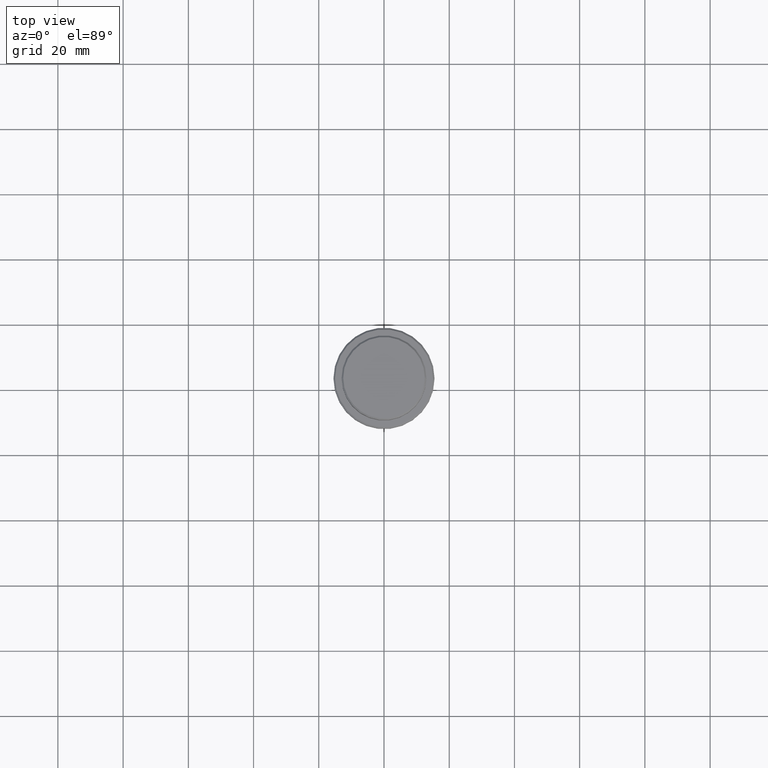
[diagram: clean part render]
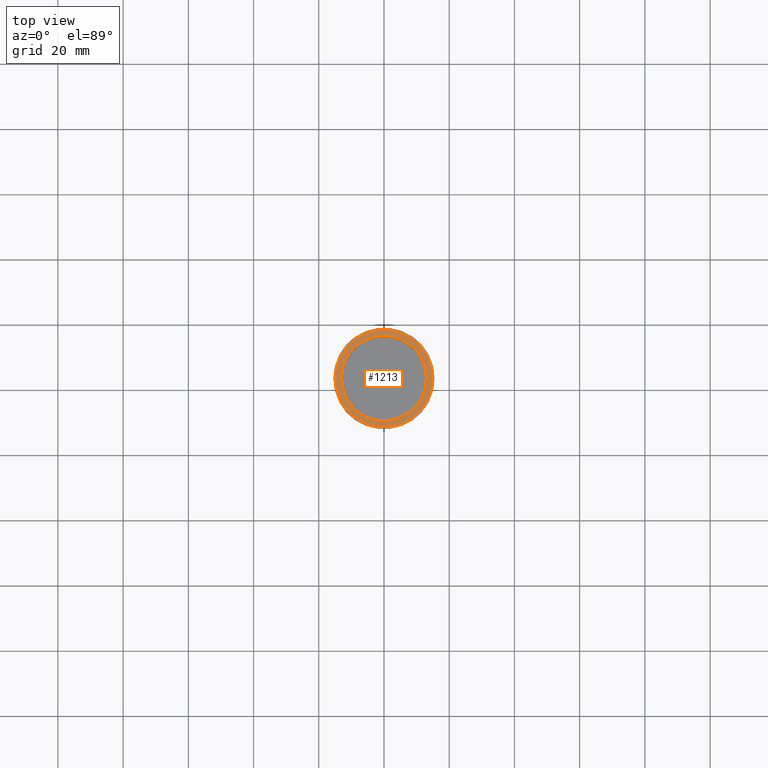
[diagram: same view with one face highlighted and labeled with its STEP entity id]
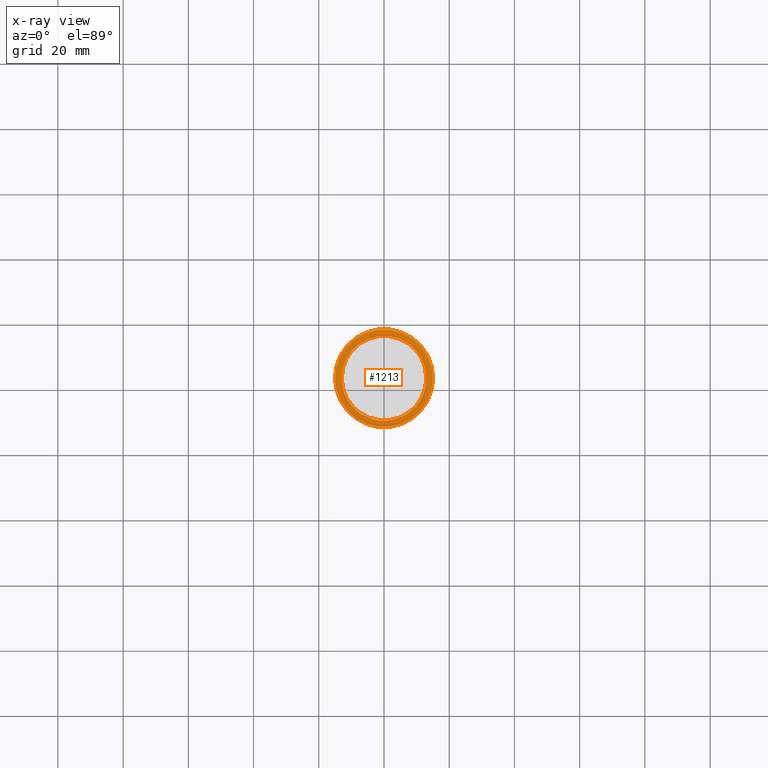
[diagram: x-ray of the same camera — body ghosted, the highlighted face saturated]
A machine part, top view. The second image highlights one B-rep face of the part: STEP entity #1213.
The next image is the same camera in x-ray: the body ghosted, the highlighted face saturated — about 0% of this face is hidden behind the body in this view.
In plain terms, the highlighted planar face has unit normal (0, -0, 1).
Its self-contained STEP definition (entity closure, byte-faithful):
#35 = EDGE_LOOP ( 'NONE', ( #41, #248 ) ) ;
#41 = ORIENTED_EDGE ( 'NONE', *, *, #1172, .T. ) ;
#59 = DIRECTION ( 'NONE',  ( 1.000000000000000000, 0.000000000000000000, 0.000000000000000000 ) ) ;
#99 = CIRCLE ( 'NONE', #893, 12.99999999999999467 ) ;
#115 = DIRECTION ( 'NONE',  ( -0.000000000000000000, -0.000000000000000000, 1.000000000000000000 ) ) ;
#162 = FACE_BOUND ( 'NONE', #882, .T. ) ;
#197 = EDGE_CURVE ( 'NONE', #490, #596, #99, .T. ) ;
#204 = DIRECTION ( 'NONE',  ( 1.000000000000000000, 0.000000000000000000, 0.000000000000000000 ) ) ;
#208 = DIRECTION ( 'NONE',  ( 1.000000000000000000, 0.000000000000000000, 0.000000000000000000 ) ) ;
#248 = ORIENTED_EDGE ( 'NONE', *, *, #786, .T. ) ;
#251 = CIRCLE ( 'NONE', #531, 14.99999999999998579 ) ;
#265 = FACE_OUTER_BOUND ( 'NONE', #35, .T. ) ;
#490 = VERTEX_POINT ( 'NONE', #840 ) ;
#531 = AXIS2_PLACEMENT_3D ( 'NONE', #1307, #115, #208 ) ;
#581 = AXIS2_PLACEMENT_3D ( 'NONE', #1312, #1195, #681 ) ;
#590 = CARTESIAN_POINT ( 'NONE',  ( 0.000000000000000000, 12.49999999999999289, -9.000000000000001776 ) ) ;
#596 = VERTEX_POINT ( 'NONE', #1294 ) ;
#615 = PLANE ( 'NONE',  #1007 ) ;
#621 = CARTESIAN_POINT ( 'NONE',  ( -14.99999999999998579, 0.000000000000000000, -9.000000000000001776 ) ) ;
#664 = CARTESIAN_POINT ( 'NONE',  ( 0.000000000000000000, 0.000000000000000000, -9.000000000000001776 ) ) ;
#681 = DIRECTION ( 'NONE',  ( 1.000000000000000000, 0.000000000000000000, 0.000000000000000000 ) ) ;
#682 = CARTESIAN_POINT ( 'NONE',  ( 14.99999999999998579, 1.867586368699712587E-15, -9.000000000000001776 ) ) ;
#690 = CARTESIAN_POINT ( 'NONE',  ( 0.000000000000000000, 0.000000000000000000, -9.000000000000001776 ) ) ;
#761 = VERTEX_POINT ( 'NONE', #682 ) ;
#786 = EDGE_CURVE ( 'NONE', #761, #1397, #941, .T. ) ;
#840 = CARTESIAN_POINT ( 'NONE',  ( 12.99999999999999467, 0.000000000000000000, -9.000000000000001776 ) ) ;
#882 = EDGE_LOOP ( 'NONE', ( #1385, #1005 ) ) ;
#893 = AXIS2_PLACEMENT_3D ( 'NONE', #664, #1191, #204 ) ;
#941 = CIRCLE ( 'NONE', #1049, 14.99999999999998579 ) ;
#980 = CIRCLE ( 'NONE', #581, 12.99999999999999467 ) ;
#1005 = ORIENTED_EDGE ( 'NONE', *, *, #1151, .T. ) ;
#1007 = AXIS2_PLACEMENT_3D ( 'NONE', #590, #1330, #59 ) ;
#1014 = DIRECTION ( 'NONE',  ( 1.000000000000000000, 0.000000000000000000, 0.000000000000000000 ) ) ;
#1049 = AXIS2_PLACEMENT_3D ( 'NONE', #690, #1416, #1014 ) ;
#1151 = EDGE_CURVE ( 'NONE', #596, #490, #980, .T. ) ;
#1172 = EDGE_CURVE ( 'NONE', #1397, #761, #251, .T. ) ;
#1191 = DIRECTION ( 'NONE',  ( 0.000000000000000000, 0.000000000000000000, -1.000000000000000000 ) ) ;
#1195 = DIRECTION ( 'NONE',  ( 0.000000000000000000, 0.000000000000000000, -1.000000000000000000 ) ) ;
#1213 = ADVANCED_FACE ( 'NONE', ( #265, #162 ), #615, .T. ) ;
#1294 = CARTESIAN_POINT ( 'NONE',  ( -12.99999999999999467, 1.592040838891558504E-15, -9.000000000000001776 ) ) ;
#1307 = CARTESIAN_POINT ( 'NONE',  ( 0.000000000000000000, 0.000000000000000000, -9.000000000000001776 ) ) ;
#1312 = CARTESIAN_POINT ( 'NONE',  ( 0.000000000000000000, 0.000000000000000000, -9.000000000000001776 ) ) ;
#1330 = DIRECTION ( 'NONE',  ( 0.000000000000000000, -0.000000000000000000, 1.000000000000000000 ) ) ;
#1385 = ORIENTED_EDGE ( 'NONE', *, *, #197, .T. ) ;
#1397 = VERTEX_POINT ( 'NONE', #621 ) ;
#1416 = DIRECTION ( 'NONE',  ( -0.000000000000000000, -0.000000000000000000, 1.000000000000000000 ) ) ;